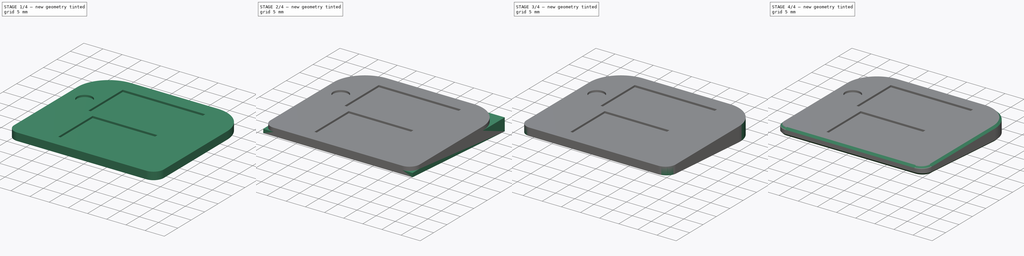
[diagram: build sequence overview — one tinted view per stage of 4, left to right]
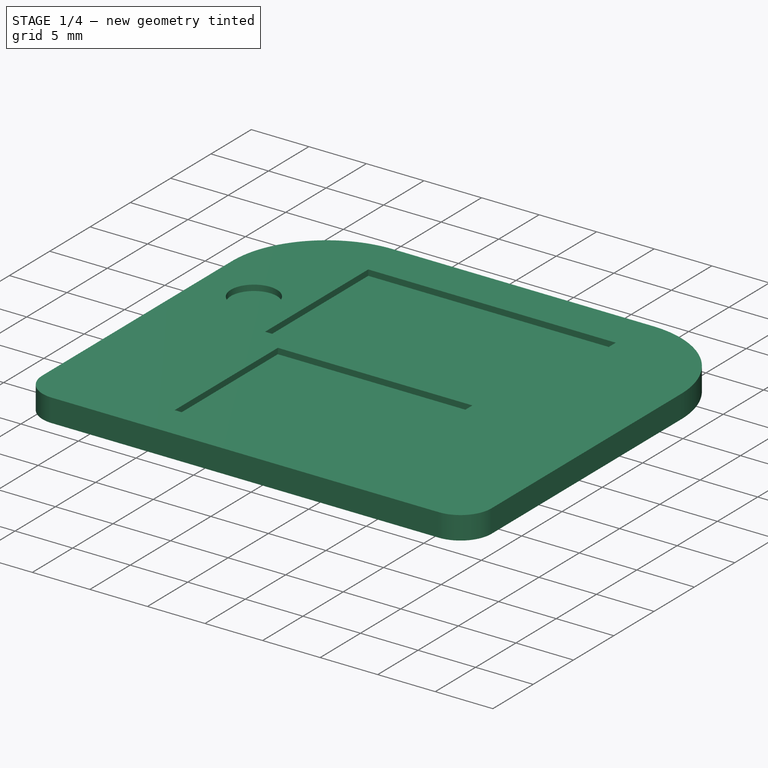
[diagram: stage 1 of 4 — iso view after this stage's code; geometry added in this stage tinted green]
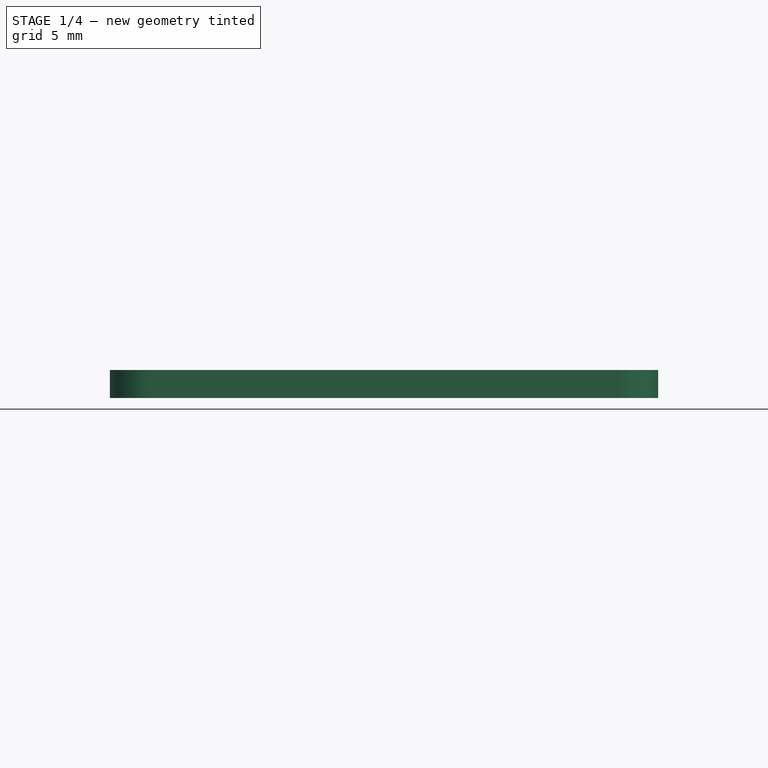
[diagram: stage 1 of 4 — front view after this stage's code; geometry added in this stage tinted green]
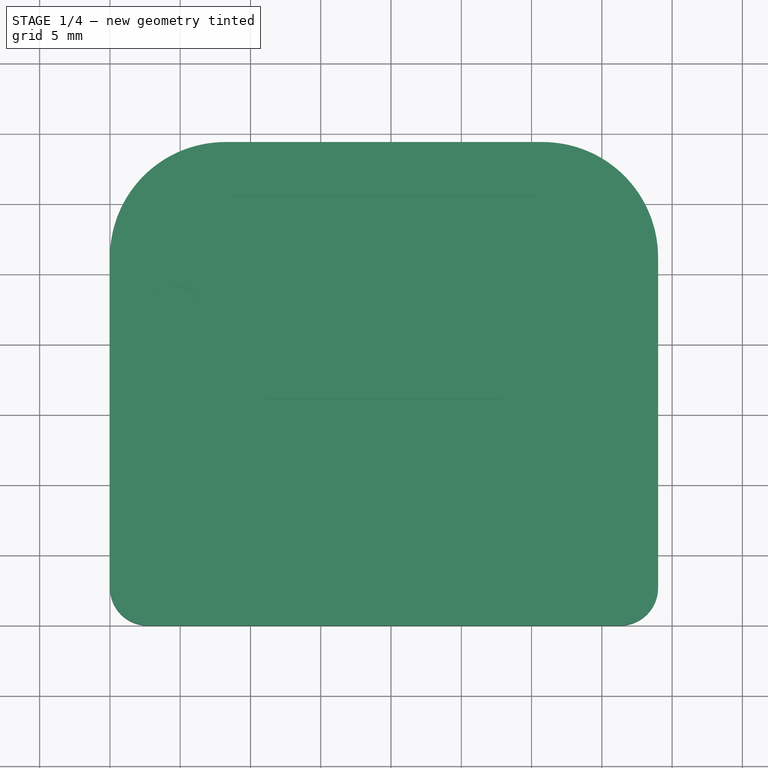
[diagram: stage 1 of 4 — top view after this stage's code; geometry added in this stage tinted green]
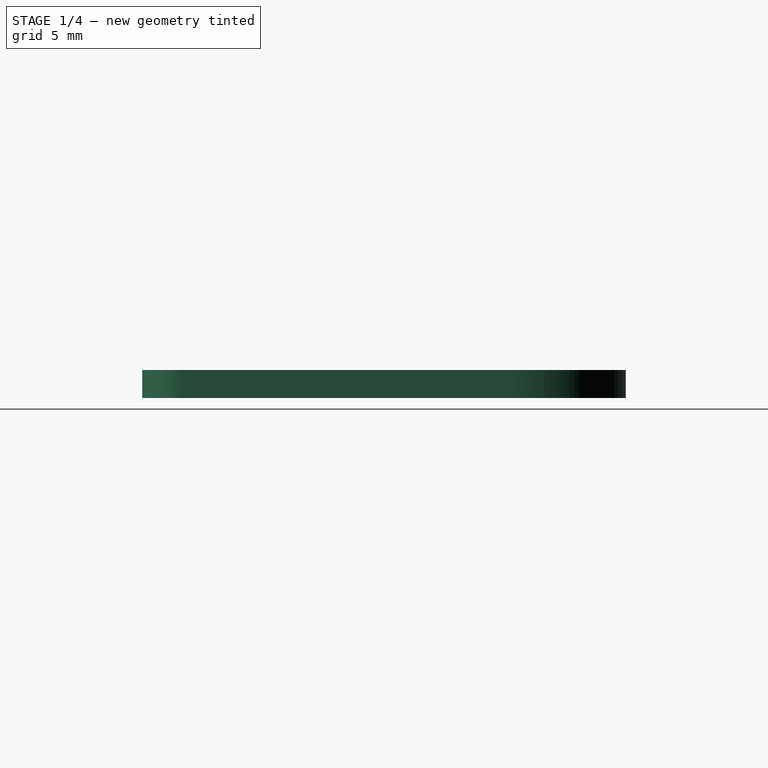
[diagram: stage 1 of 4 — right view after this stage's code; geometry added in this stage tinted green]
FCSTD DOCUMENT  (FreeCAD 0.20R29177 +426 (Git))
Label: 2DS Icon
License: All rights reserved
LicenseURL: http://en.wikipedia.org/wiki/All_rights_reserved
objects: PartDesign::Pocket×5, Sketcher::SketchObject×3, PartDesign::Pad×2, PartDesign::Body×2, PartDesign::Chamfer×2, PartDesign::FeatureBase×1, App::Part×1
note: 24 computed .brp shape members not serialized (recipe doc carries the construction recipe); baked Part::Feature solids carry a one-line shape summary decoded from their .brp

FEATURE [Sketcher::SketchObject] Sketch
  FullyConstrained = true
  MapMode = 5
  Support = -> [XY_Plane]
  sketch-geometry (12):
    g0: LineSegment StartX=0 StartY=0 StartZ=0 EndX=39 EndY=0 EndZ=0
    g1: LineSegment StartX=39 StartY=0 StartZ=0 EndX=39 EndY=34.4 EndZ=0
    g2: LineSegment StartX=39 StartY=34.4 StartZ=0 EndX=0 EndY=34.4 EndZ=0
    g3: LineSegment StartX=0 StartY=34.4 StartZ=0 EndX=0 EndY=0 EndZ=0
    g4: LineSegment StartX=8.2 StartY=34.4 StartZ=0 EndX=30.8 EndY=34.4 EndZ=0
    g5: LineSegment StartX=39 StartY=26.2 StartZ=0 EndX=39 EndY=2.7 EndZ=0
    g6: LineSegment StartX=36.3 StartY=0 StartZ=0 EndX=2.7 EndY=0 EndZ=0
    g7: LineSegment StartX=0 StartY=2.7 StartZ=0 EndX=0 EndY=26.2 EndZ=0
    g8: ArcOfCircle CenterX=8.2 CenterY=26.2 CenterZ=0 NormalX=0 NormalY=0 NormalZ=1 AngleXU=0 Radius=8.2 StartAngle=1.5708 EndAngle=3.14159
    g9: ArcOfCircle CenterX=30.8 CenterY=26.2 CenterZ=0 NormalX=0 NormalY=0 NormalZ=1 AngleXU=0 Radius=8.2 StartAngle=0 EndAngle=1.5708
    g10: ArcOfCircle CenterX=36.3 CenterY=2.7 CenterZ=0 NormalX=0 NormalY=0 NormalZ=1 AngleXU=0 Radius=2.7 StartAngle=4.71239 EndAngle=6.28319
    g11: ArcOfCircle CenterX=2.7 CenterY=2.7 CenterZ=0 NormalX=0 NormalY=0 NormalZ=1 AngleXU=0 Radius=2.7 StartAngle=3.14159 EndAngle=4.71239
  constraints (31):
    c: Coincident(g0,g1)
    c: Coincident(g1,g2)
    c: Coincident(g2,g3)
    c: Coincident(g3,g0)
    c: Horizontal(g0)
    c: Horizontal(g2)
    c: Vertical(g1)
    c: Vertical(g3)
    c: Coincident(g0,g-1)
    c: Distance(g0) = 39
    c: Distance(g1) = 34.4
    c: Horizontal(g4)
    c: Horizontal(g6)
    c: Vertical(g5)
    c: Vertical(g7)
    c: Tangent(g7,g8) = 1.5708
    c: Tangent(g4,g8) = 1.5708
    c: Tangent(g4,g9) = 1.5708
    c: Tangent(g5,g9) = 1.5708
    c: Tangent(g5,g10) = 1.5708
    c: Tangent(g6,g10) = 1.5708
    c: Tangent(g6,g11) = 1.5708
    c: Tangent(g7,g11) = 1.5708
    c: PointOnObject(g4,g2)
    c: PointOnObject(g7,g3)
    c: PointOnObject(g5,g1)
    c: PointOnObject(g6,g0)
    c: Equal(g11,g10)
    c: Equal(g9,g8)
    c: Radius(g9) = 8.2
    c: Radius(g10) = 2.7
FEATURE [PartDesign::Pad] Pad
  Direction = (0,0,1)
  Length = 2
  Length2 = 10
  Profile = -> Sketch
  ReferenceAxis = -> Sketch [N_Axis]
  Type = 0
FEATURE [Sketcher::SketchObject] Sketch001
  ExternalGeometry = -> [Pad]
  FullyConstrained = true
  MapMode = 5
  Placement = pos=(0,0,2) rot=(0,0,1;0rad)
  Support = -> [Pad]
  sketch-geometry (17):
    g0: LineSegment StartX=8.75 StartY=30.6 StartZ=0 EndX=30.25 EndY=30.6 EndZ=0
    g1: LineSegment StartX=30.25 StartY=30.6 StartZ=0 EndX=30.25 EndY=17.8 EndZ=0
    g2: LineSegment StartX=30.25 StartY=17.8 StartZ=0 EndX=8.75 EndY=17.8 EndZ=0
    g3: LineSegment StartX=8.75 StartY=17.8 StartZ=0 EndX=8.75 EndY=30.6 EndZ=0
    g4: LineSegment StartX=11.05 StartY=16.1 StartZ=0 EndX=27.95 EndY=16.1 EndZ=0
    g5: LineSegment StartX=27.95 StartY=16.1 StartZ=0 EndX=27.95 EndY=3.3 EndZ=0
    g6: LineSegment StartX=27.95 StartY=3.3 StartZ=0 EndX=11.05 EndY=3.3 EndZ=0
    g7: LineSegment StartX=11.05 StartY=3.3 StartZ=0 EndX=11.05 EndY=16.1 EndZ=0
    g8: LineSegment StartX=8.75 StartY=17.8 StartZ=0 EndX=0 EndY=17.8 EndZ=0
    g9: LineSegment StartX=11.05 StartY=16.1 StartZ=0 EndX=0 EndY=16.1 EndZ=0
    g10: LineSegment StartX=27.95 StartY=16.1 StartZ=0 EndX=39 EndY=16.1 EndZ=0
    g11: LineSegment StartX=30.25 StartY=17.8 StartZ=0 EndX=39 EndY=17.8 EndZ=0
    g12: LineSegment StartX=19.5 StartY=0 StartZ=0 EndX=19.5 EndY=3.3 EndZ=0
    g13: LineSegment StartX=19.5 StartY=34.4 StartZ=0 EndX=19.5 EndY=30.6 EndZ=0
    g14: Circle CenterX=4.7 CenterY=22.2 CenterZ=0 NormalX=0 NormalY=0 NormalZ=1 AngleXU=0 Radius=2
    g15: LineSegment StartX=0 StartY=22.2 StartZ=0 EndX=2.7 EndY=22.2 EndZ=0
    g16: LineSegment StartX=4.7 StartY=20.2 StartZ=0 EndX=4.7 EndY=0 EndZ=0
  constraints (51):
    c: Coincident(g0,g1)
    c: Coincident(g1,g2)
    c: Coincident(g2,g3)
    c: Coincident(g3,g0)
    c: Horizontal(g0)
    c: Horizontal(g2)
    c: Vertical(g1)
    c: Vertical(g3)
    c: Coincident(g4,g5)
    c: Coincident(g5,g6)
    c: Coincident(g6,g7)
    c: Coincident(g7,g4)
    c: Horizontal(g4)
    c: Horizontal(g6)
    c: Vertical(g5)
    c: Vertical(g7)
    c: Coincident(g8,g2)
    c: PointOnObject(g8,g-5)
    c: Horizontal(g8)
    c: Coincident(g9,g4)
    c: PointOnObject(g9,g-5)
    c: Horizontal(g9)
    c: Coincident(g10,g4)
    c: PointOnObject(g10,g-6)
    c: Horizontal(g10)
    c: Coincident(g11,g1)
    c: PointOnObject(g11,g-6)
    c: Horizontal(g11)
    c: Vertical(g12)
    c: Vertical(g13)
    c: Symmetric(g0,g0,g13)
    c: Symmetric(g-3,g-3,g13)
    c: Symmetric(g-4,g-4,g12)
    c: Symmetric(g6,g5,g12)
    c: Distance(g4) = 16.9
    c: Distance(g5) = 12.8
    c: Distance(g12) = 3.3
    c: Distance(g1) = 12.8
    c: Distance(g0) = 21.5
    c: Distance(g13) = 3.8
    c: PointOnObject(g15,g-5)
    c: PointOnObject(g15,g14)
    c: Horizontal(g15)
    c: PointOnObject(g16,g14)
    c: PointOnObject(g16,g-4)
    c: Vertical(g16)
    c: Perpendicular(g14,g16)
    c: Perpendicular(g14,g15)
    c: Distance(g15) = 2.7
    c: Distance(g16) = 20.2
    c: Diameter(g14) = 4
FEATURE [PartDesign::Pocket] Pocket
  BaseFeature = -> Pad
  Direction = (0,0,-1)
  Length = 0.5
  Length2 = 5
  Profile = -> Sketch001
  ReferenceAxis = -> Sketch001 [N_Axis]
  Type = 0
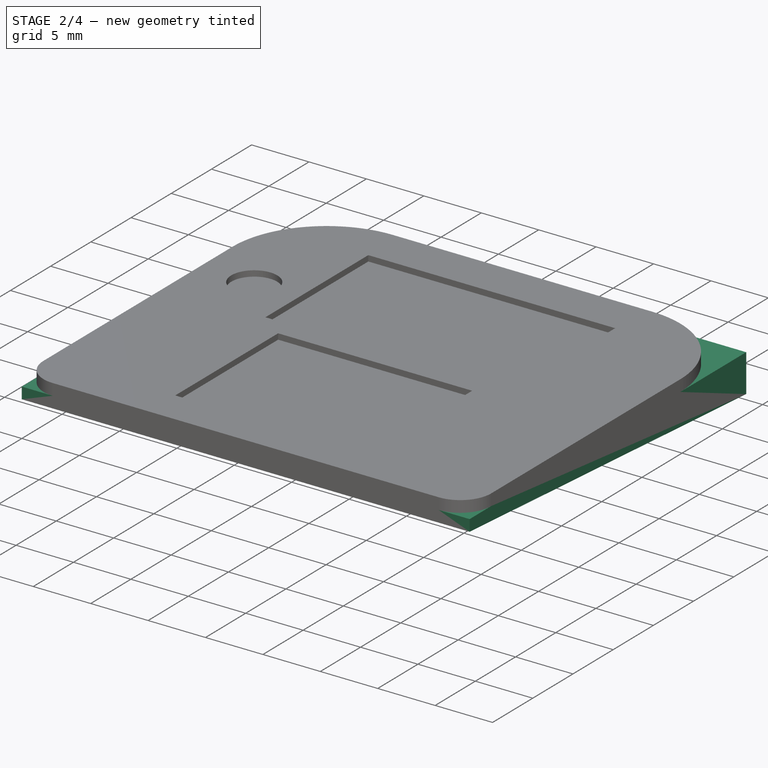
[diagram: stage 2 of 4 — iso view after this stage's code; geometry added in this stage tinted green]
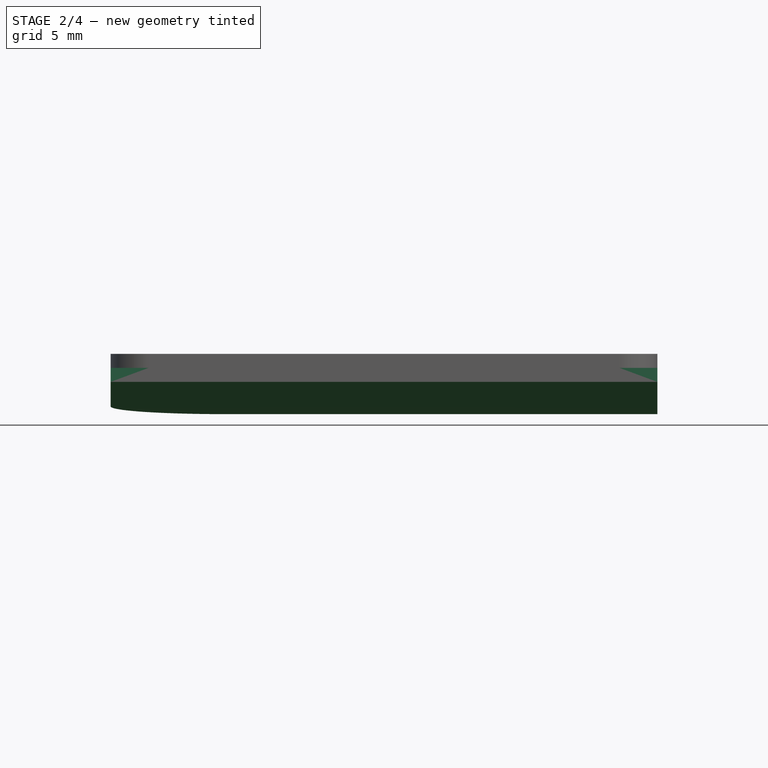
[diagram: stage 2 of 4 — front view after this stage's code; geometry added in this stage tinted green]
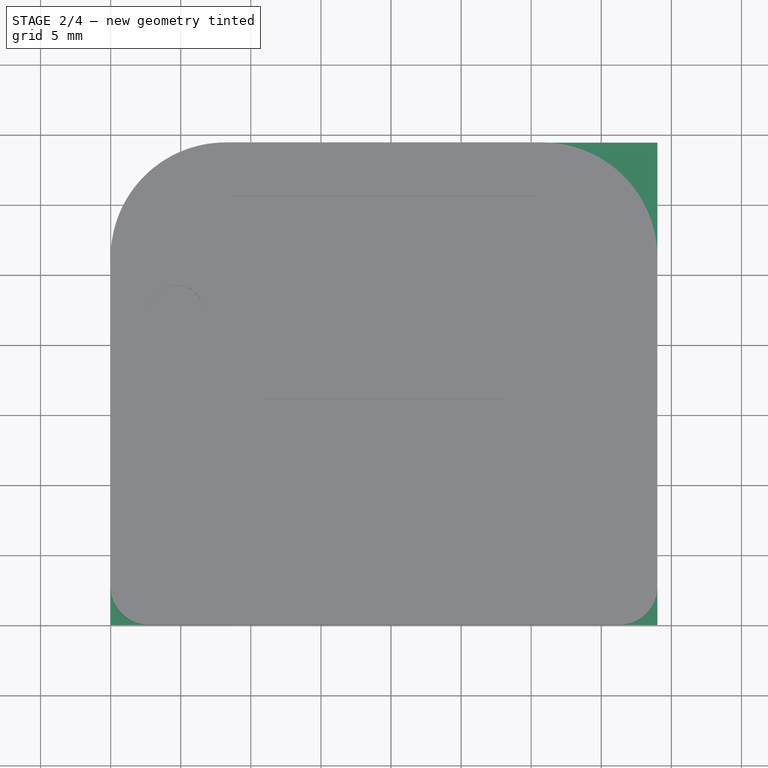
[diagram: stage 2 of 4 — top view after this stage's code; geometry added in this stage tinted green]
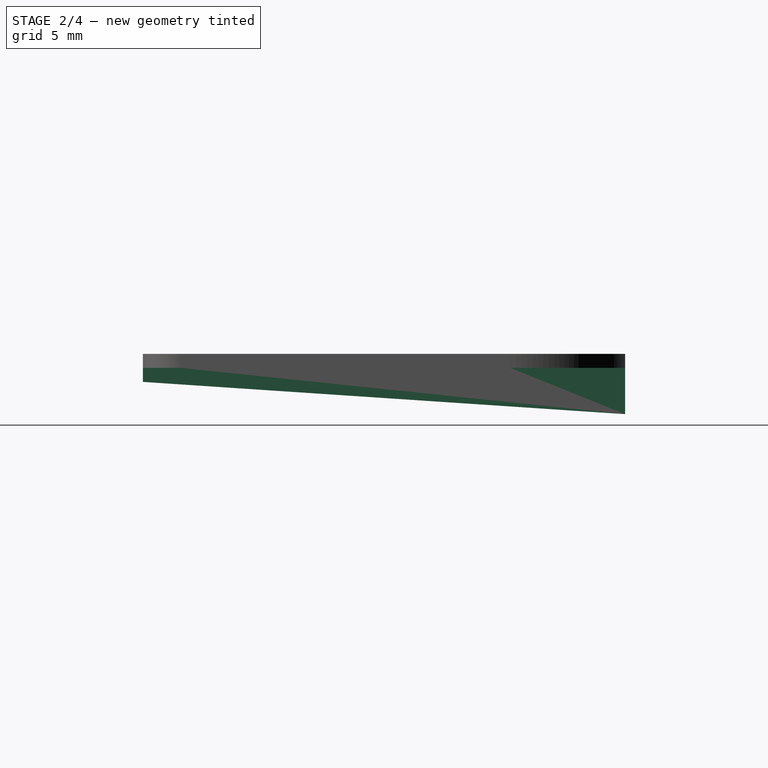
[diagram: stage 2 of 4 — right view after this stage's code; geometry added in this stage tinted green]
FEATURE [PartDesign::Body] Body  label="Icon"
  Group = -> [Sketch,Pad,Sketch001,Pocket]
  Origin = -> Origin
  Tip = -> Pocket
FEATURE [PartDesign::FeatureBase] Clone
  BaseFeature = -> Pocket
FEATURE [Sketcher::SketchObject] Sketch002
  ExternalGeometry = -> [Clone]
  FullyConstrained = true
  MapMode = 5
  Placement = pos=(39,0,0) rot=(0.57735,0.57735,0.57735;2.0944rad)
  Support = -> [Clone]
  sketch-geometry (5):
    g0: LineSegment StartX=0 StartY=-4e-16 StartZ=0 EndX=0 EndY=1 EndZ=0
    g1: LineSegment StartX=0 StartY=1 StartZ=0 EndX=34.4 EndY=1 EndZ=0
    g2: LineSegment StartX=34.4 StartY=1 StartZ=0 EndX=34.4 EndY=0 EndZ=0
    g3: LineSegment StartX=34.4 StartY=0 StartZ=0 EndX=34.4 EndY=-2.3 EndZ=0
    g4: LineSegment StartX=34.4 StartY=-2.3 StartZ=0 EndX=0 EndY=-4e-16 EndZ=0
  constraints (13):
    c: Coincident(g0,g-1)
    c: PointOnObject(g0,g-2)
    c: Coincident(g1,g0)
    c: Horizontal(g1)
    c: PointOnObject(g1,g-3)
    c: Distance(g0) = 1
    c: Coincident(g2,g1)
    c: Coincident(g2,g-3)
    c: Coincident(g3,g2)
    c: Vertical(g3)
    c: Coincident(g4,g3)
    c: Coincident(g4,g0)
    c: Distance(g3) = 2.3
FEATURE [PartDesign::Pad] Pad001
  BaseFeature = -> Clone
  Direction = (1,0,0)
  Length = 10
  Length2 = 10
  Profile = -> Sketch002
  ReferenceAxis = -> Sketch002 [N_Axis]
  Refine = true
  Reversed = true
  Type = 3
  UpToFace = -> Clone [Face1]
FEATURE [PartDesign::Pocket] Pocket001
  BaseFeature = -> Pad001
  Direction = (0,0,-1)
  Length = 5
  Length2 = 5
  Profile = -> Pad001 [Face7]
  Type = 0
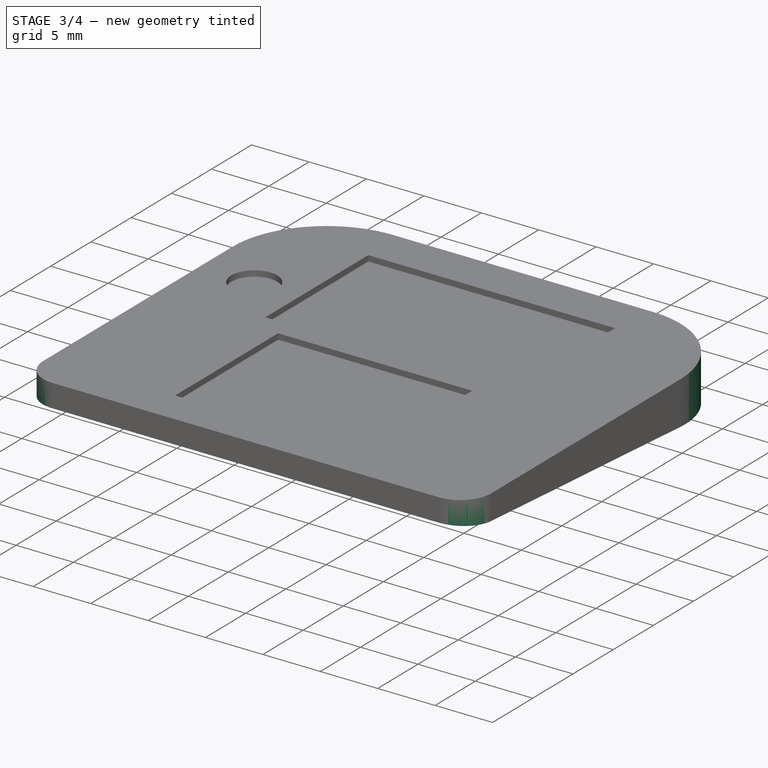
[diagram: stage 3 of 4 — iso view after this stage's code; geometry added in this stage tinted green]
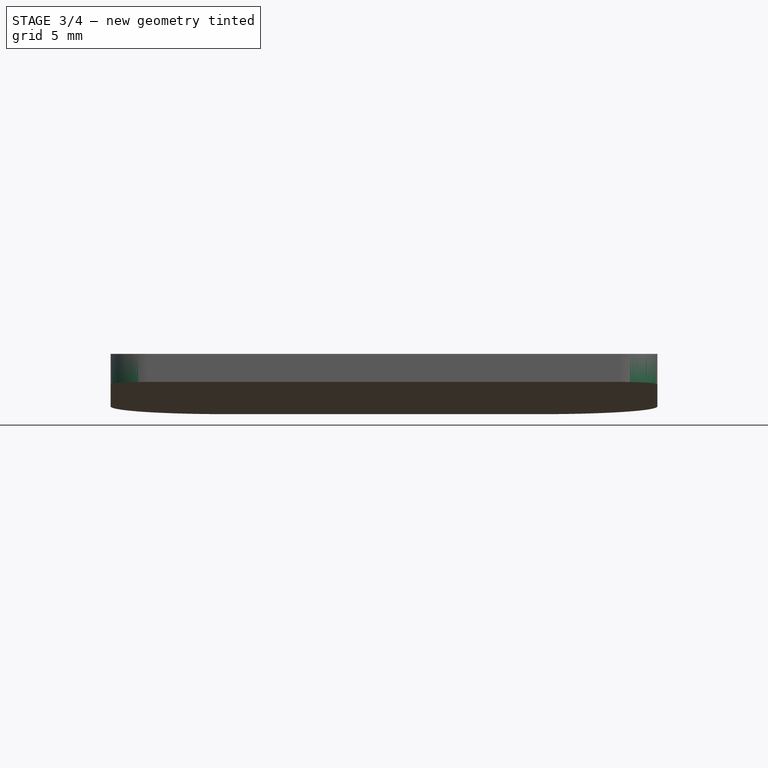
[diagram: stage 3 of 4 — front view after this stage's code; geometry added in this stage tinted green]
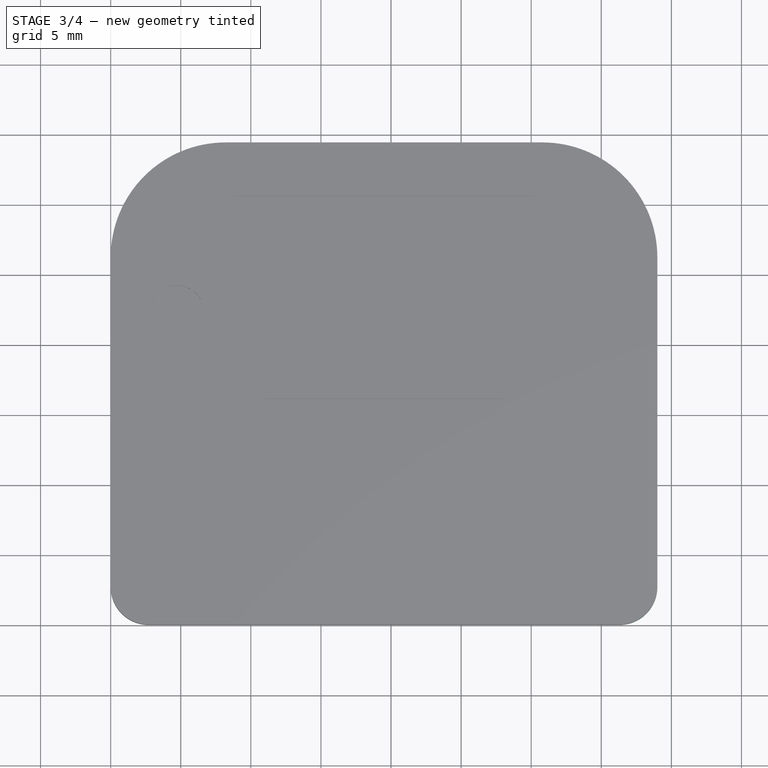
[diagram: stage 3 of 4 — top view after this stage's code; geometry added in this stage tinted green]
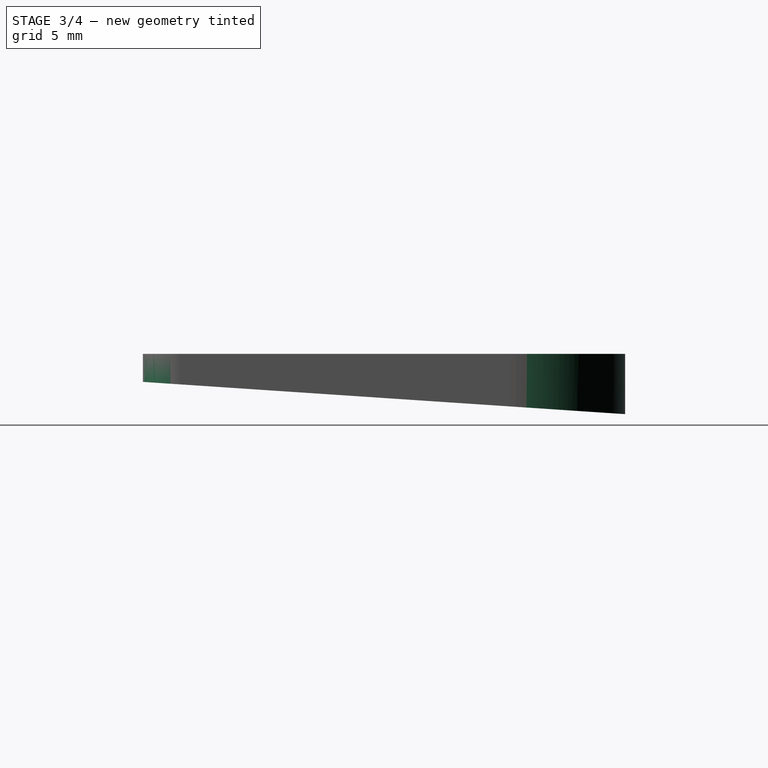
[diagram: stage 3 of 4 — right view after this stage's code; geometry added in this stage tinted green]
FEATURE [PartDesign::Pocket] Pocket002
  BaseFeature = -> Pocket001
  Direction = (0,0,-1)
  Length = 5
  Length2 = 5
  Profile = -> Pocket001 [Face12]
  Type = 0
FEATURE [PartDesign::Pocket] Pocket003
  BaseFeature = -> Pocket002
  Direction = (0,0,-1)
  Length = 5
  Length2 = 5
  Profile = -> Pocket002 [Face8]
  Type = 0
FEATURE [PartDesign::Pocket] Pocket004
  BaseFeature = -> Pocket003
  Direction = (0,0,-1)
  Length = 5
  Length2 = 5
  Profile = -> Pocket003 [Face9]
  Refine = true
  Type = 0
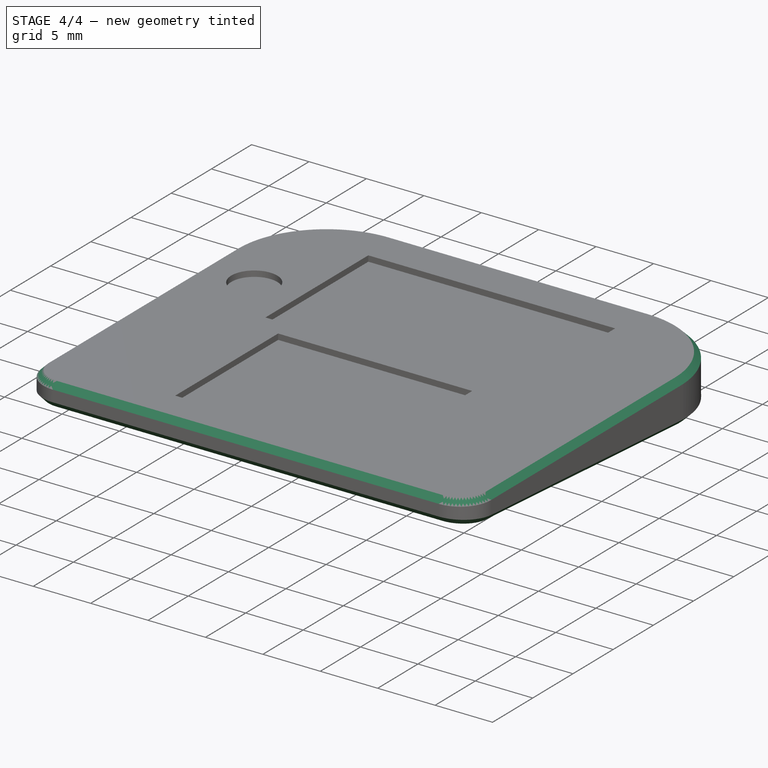
[diagram: stage 4 of 4 — iso view after this stage's code; geometry added in this stage tinted green]
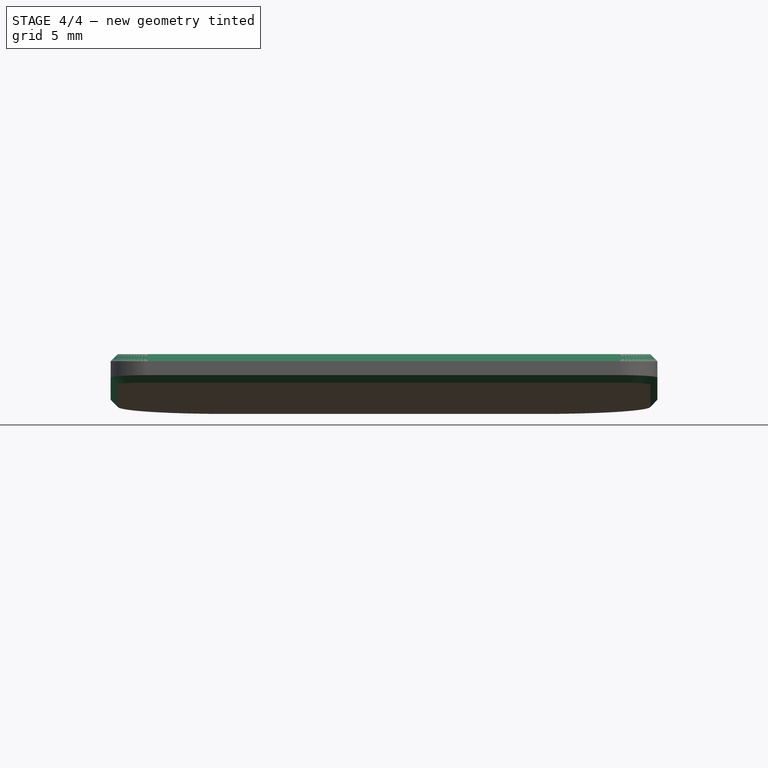
[diagram: stage 4 of 4 — front view after this stage's code; geometry added in this stage tinted green]
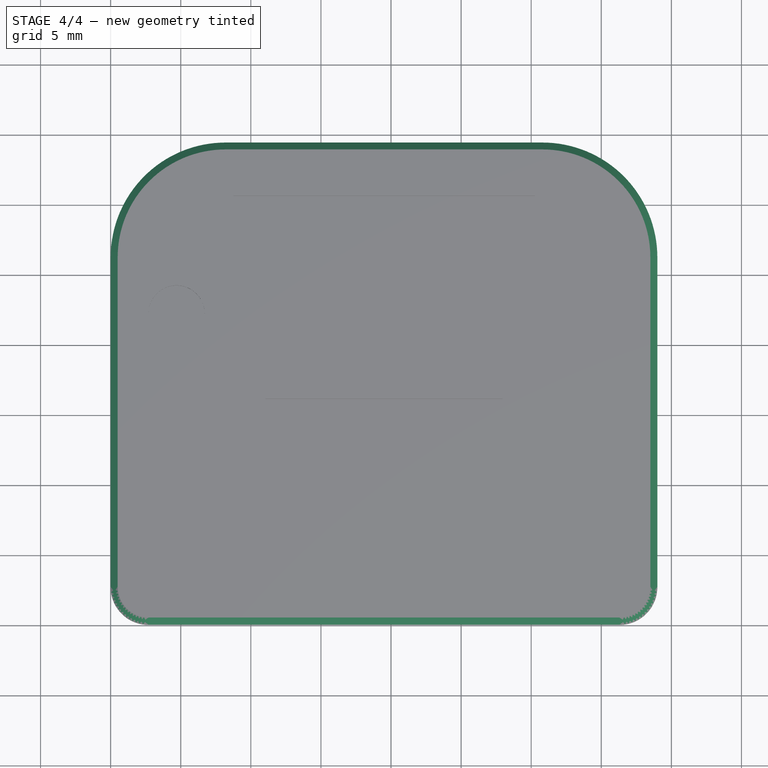
[diagram: stage 4 of 4 — top view after this stage's code; geometry added in this stage tinted green]
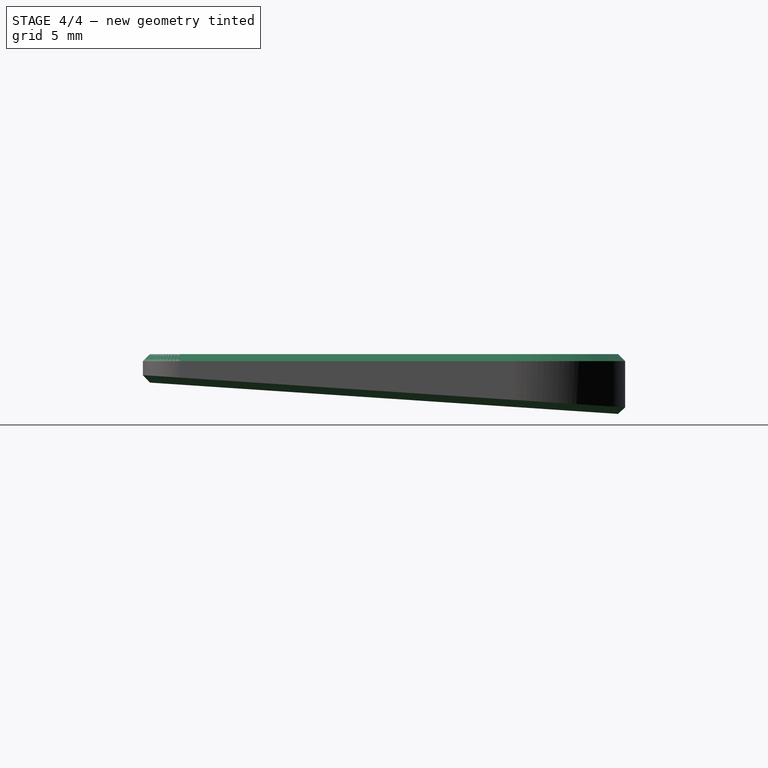
[diagram: stage 4 of 4 — right view after this stage's code; geometry added in this stage tinted green]
FEATURE [PartDesign::Chamfer] Chamfer
  Angle = 45
  Base = -> Pocket004 [Edge10]
  BaseFeature = -> Pocket004
  ChamferType = 0
  FlipDirection = false
  Size = 0.5
  Size2 = 1
  SupportTransform = false
  UseAllEdges = false
FEATURE [PartDesign::Chamfer] Chamfer001
  Angle = 45
  Base = -> Chamfer [Edge3]
  BaseFeature = -> Chamfer
  ChamferType = 0
  FlipDirection = false
  Size = 0.5
  Size2 = 1
  SupportTransform = false
  UseAllEdges = false
FEATURE [PartDesign::Body] Body001  label="Key Chain"
  Group = -> [Clone,Sketch002,Pad001,Pocket001,Pocket002,Pocket003,Pocket004,Chamfer,Chamfer001]
  Origin = -> Origin002
  Placement = pos=(50,0,0) rot=(0,0,1;0rad)
  Tip = -> Chamfer001
FEATURE [App::Part] Part  label="2DS"
  Group = -> [Body,Body001]
  Origin = -> Origin001
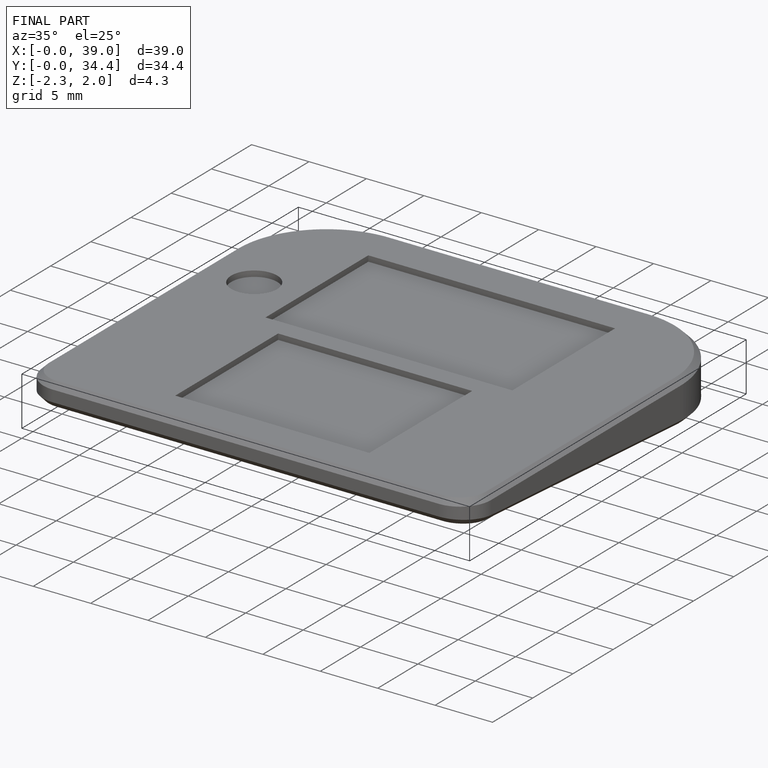
[diagram: finished part — iso view with bounding-box wireframe]
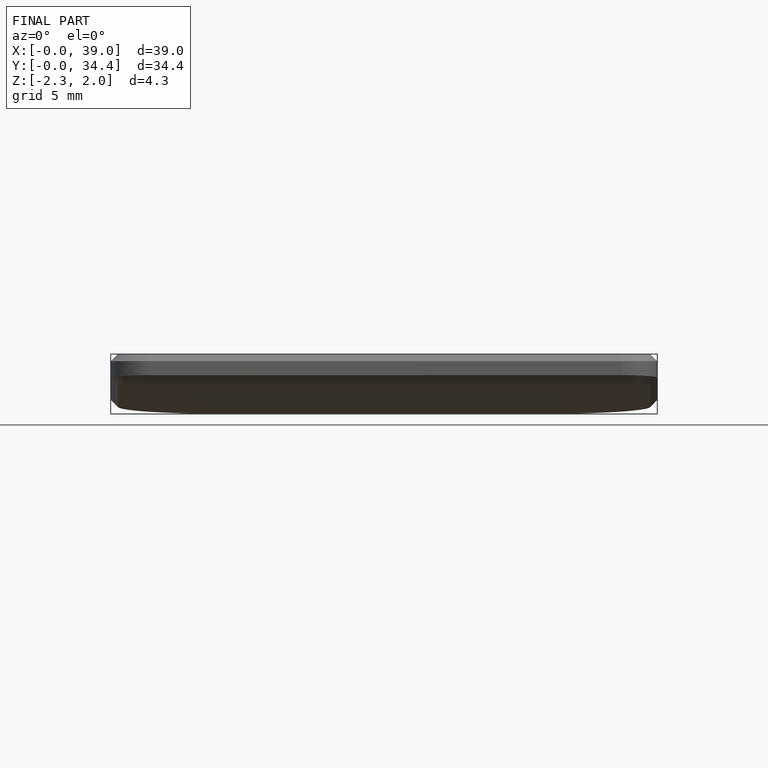
[diagram: finished part — front view with bounding-box wireframe]
